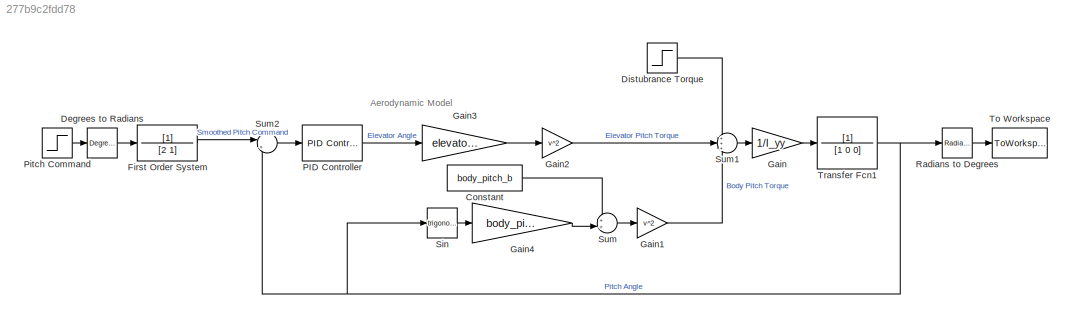
MODEL slx_277b9c2fdd78
KIND model
CONFIG AbsTol = auto
CONFIG EnableMultiTasking = off
CONFIG FixedStep = auto
CONFIG MaxStep = auto
CONFIG MinStep = auto
CONFIG RelTol = 1e-3
CONFIG SampleTimeConstraint = Unconstrained
CONFIG SolverName = VariableStepAuto
CONFIG StartTime = 0.0
CONFIG StopTime = 30
BLOCK [Constant] Constant
  Value = body_pitch_b
BLOCK [Reference] Degrees to Radians  REF=simulink_extras/Transformations/Degrees to
Radians
  Ports = [1, 1]
  SourceBlock = simulink_extras/Transformations/Degrees to\nRadians
  SourceProductBaseCode = SL
  SourceType = DegreesToRadians
BLOCK [Step] Distubrance Torque
  After = 5
  SampleTime = 0
  Time = 15
BLOCK [TransferFcn] First Order System
  Denominator = [2 1]
BLOCK [Gain] Gain
  Gain = 1/I_yy
BLOCK [Gain] Gain1
  Gain = v^2
BLOCK [Gain] Gain2
  Gain = v^2
BLOCK [Gain] Gain3
  Gain = elevator_m
BLOCK [Gain] Gain4
  Gain = body_pitch_m
BLOCK [Reference] PID Controller  REF=pid_lib/PID Controller
  Ports = [1, 1]
  SourceBlock = pid_lib/PID Controller
  SourceProductBaseCode = SL
  SourceType = PID 1dof
BLOCK [Step] Pitch Command
  After = 5
  Before = initial_roll
  SampleTime = 0
  Time = 0
BLOCK [Reference] Radians to Degrees  REF=simulink_extras/Transformations/Radians
to Degrees
  Ports = [1, 1]
  SourceBlock = simulink_extras/Transformations/Radians\nto Degrees
  SourceProductBaseCode = SL
  SourceType = RadiansToDegrees
BLOCK [Trigonometry] Sin
  Ports = [1, 1]
BLOCK [Sum] Sum
  Inputs = ++|
  Ports = [2, 1]
BLOCK [Sum] Sum1
  Inputs = +++
  Ports = [3, 1]
BLOCK [Sum] Sum2
  Inputs = |+-
  Ports = [2, 1]
BLOCK [ToWorkspace] To Workspace
  FixptAsFi = on
  MaxDataPoints = inf
  Ports = [1]
  SampleTime = -1
  SaveFormat = Timeseries
  VariableName = pitch
BLOCK [TransferFcn] Transfer Fcn1
  Denominator = [1 0 0]
ANNOTATION (root): Aerodynamic Model
LINE Constant:1 -> Sum:1
LINE Degrees to Radians:1 -> First Order System:1
LINE Distubrance Torque:1 -> Sum1:1
LINE First Order System:1 -> Sum2:1
LINE Gain1:1 -> Sum1:3
LINE Gain2:1 -> Sum1:2
LINE Gain3:1 -> Gain2:1
LINE Gain4:1 -> Sum:2
LINE Gain:1 -> Transfer Fcn1:1
LINE PID Controller:1 -> Gain3:1
LINE Pitch Command:1 -> Degrees to Radians:1
LINE Radians to Degrees:1 -> To Workspace:1
LINE Sin:1 -> Gain4:1
LINE Sum1:1 -> Gain:1
LINE Sum2:1 -> PID Controller:1
LINE Sum:1 -> Gain1:1
NET Transfer Fcn1:1 -> Radians to Degrees:1, Sin:1, Sum2:2
note: NET lines group one-source signal fan-out (src -> all destinations, sorted); 1:1 wires keep LINE
